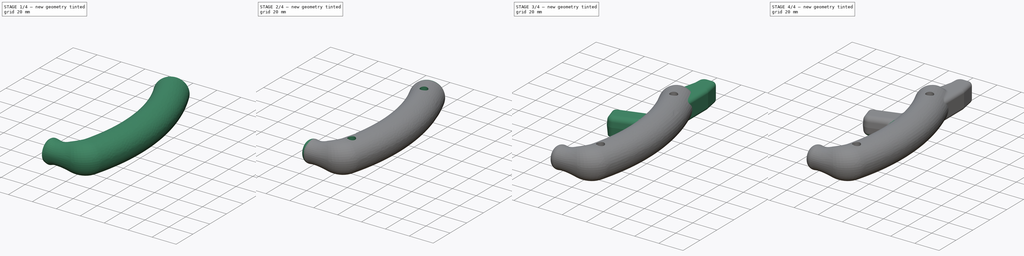
[diagram: build sequence overview — one tinted view per stage of 4, left to right]
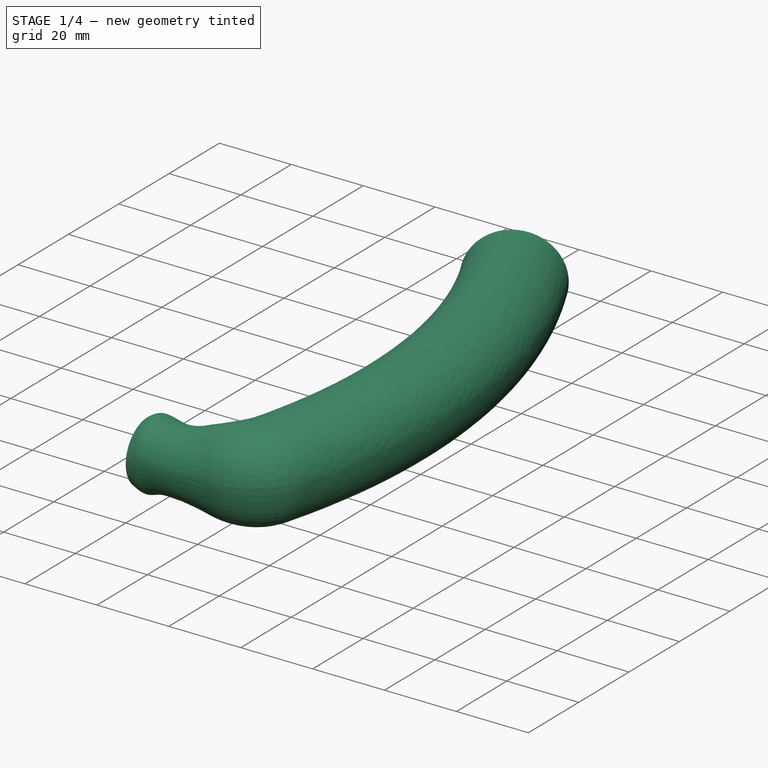
[diagram: stage 1 of 4 — iso view after this stage's code; geometry added in this stage tinted green]
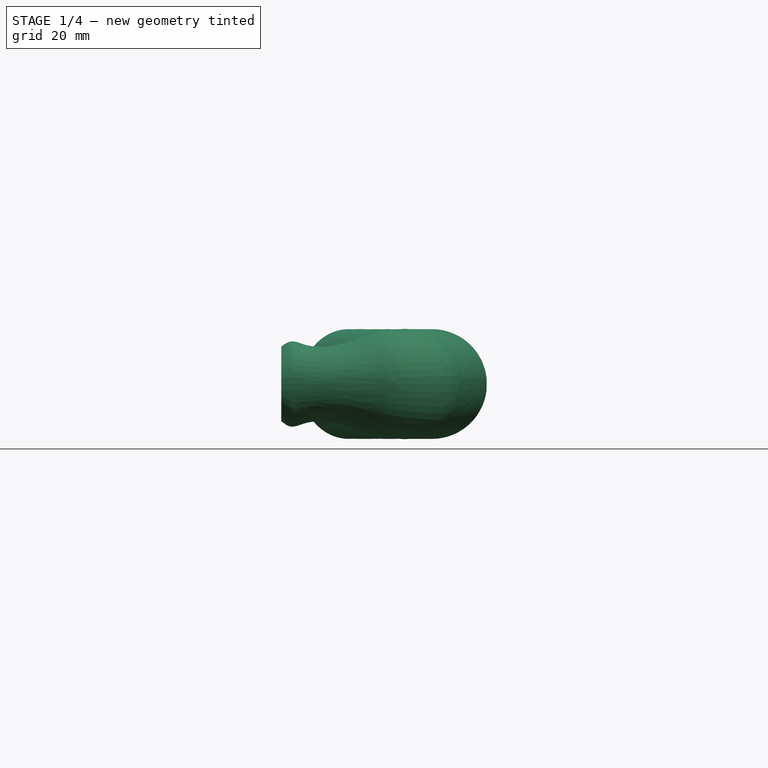
[diagram: stage 1 of 4 — front view after this stage's code; geometry added in this stage tinted green]
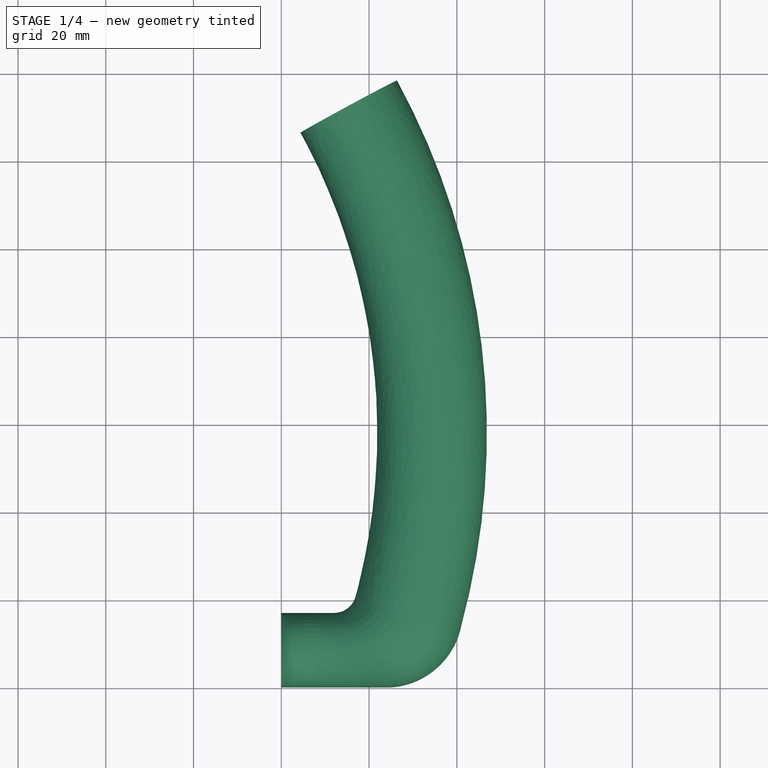
[diagram: stage 1 of 4 — top view after this stage's code; geometry added in this stage tinted green]
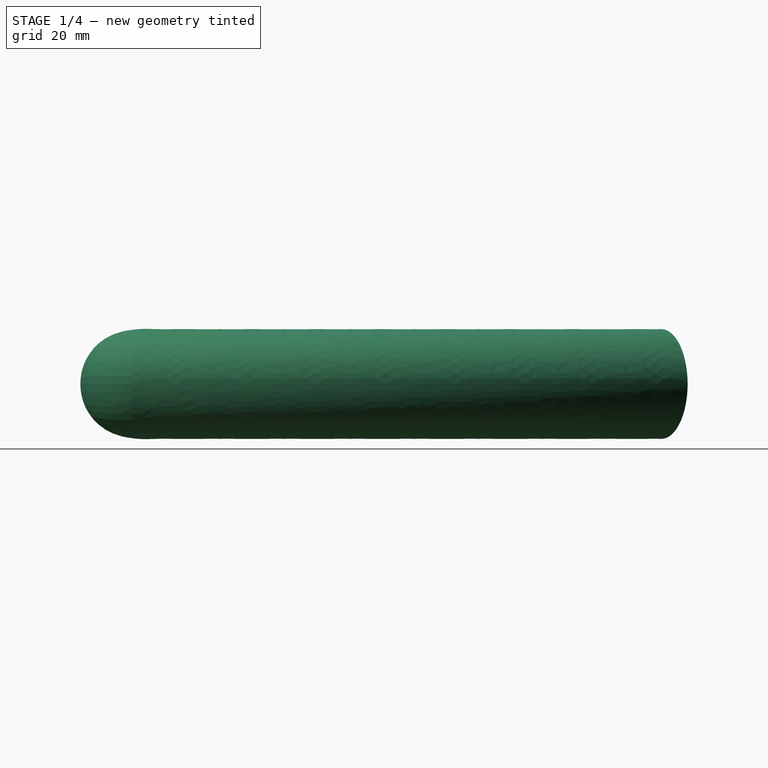
[diagram: stage 1 of 4 — right view after this stage's code; geometry added in this stage tinted green]
FCSTD DOCUMENT  (FreeCAD 1.0R39109 (Git))
Label: handle4
License: All rights reserved
LicenseURL: https://en.wikipedia.org/wiki/All_rights_reserved
objects: Sketcher::SketchObject×16, PartDesign::Plane×9, PartDesign::Fillet×7, PartDesign::AdditivePipe×3, PartDesign::Pad×2, PartDesign::Hole×1, PartDesign::Body×1
note: 81 computed .brp shape members not serialized (recipe doc carries the construction recipe); baked Part::Feature solids carry a one-line shape summary decoded from their .brp

FEATURE [Sketcher::SketchObject] Sketch  label="draft"
  ArcFitTolerance = 1e-06
  FullyConstrained = false
  MakeInternals = false
  sketch-geometry (31):
    g0: LineSegment StartX=0 StartY=16.8405 StartZ=0 EndX=0 EndY=0 EndZ=0
    g1: ArcOfCircle CenterX=24.2442 CenterY=17 CenterZ=0 NormalX=0 NormalY=0 NormalZ=1 AngleXU=0 Radius=17 StartAngle=4.71239 EndAngle=6.01234
    g2: ArcOfCircle CenterX=12.089 CenterY=21.8405 CenterZ=0 NormalX=0 NormalY=0 NormalZ=1 AngleXU=0 Radius=5 StartAngle=4.71239 EndAngle=6.02249
    g3: ArcOfCircle CenterX=0 CenterY=8.42024 CenterZ=0 NormalX=0 NormalY=0 NormalZ=1 AngleXU=0 Radius=8.42024 StartAngle=1.5708 EndAngle=4.71239
    g4: LineSegment StartX=12.089 StartY=16.8405 StartZ=0 EndX=12.089 EndY=0 EndZ=0
    g5: LineSegment StartX=15.135 StartY=17.8754 StartZ=0 EndX=34.532 EndY=3.46632 EndZ=0
    g6: LineSegment StartX=12.089 StartY=16.8405 StartZ=0 EndX=24.2442 EndY=-0.00123973 EndZ=0
    g7: LineSegment StartX=16.92 StartY=20.5517 StartZ=0 EndX=40.6245 EndY=12.4517 EndZ=0
    g8: LineSegment StartX=12.089 StartY=16.8405 StartZ=0 EndX=17.9725 EndY=-3.6e-15 EndZ=0
    g9: LineSegment StartX=8.25203 StartY=67.8671 StartZ=0 EndX=4.47332 EndY=84.6059 EndZ=0
    g10: ArcOfCircle CenterX=6.36268 CenterY=76.2365 CenterZ=0 NormalX=0 NormalY=0 NormalZ=1 AngleXU=0 Radius=8.58001 StartAngle=1.79282 EndAngle=4.93441
    g11: LineSegment StartX=4.3823 StartY=126.388 StartZ=0 EndX=26.3634 EndY=138.297 EndZ=0
    g12: LineSegment StartX=0 StartY=0 StartZ=0 EndX=24.2442 EndY=0 EndZ=0
    g13: LineSegment StartX=12.089 StartY=16.8405 StartZ=0 EndX=0 EndY=16.8405 EndZ=0
    g14: ArcOfCircle CenterX=-122.373 CenterY=57.711 CenterZ=0 NormalX=0 NormalY=0 NormalZ=1 AngleXU=0 Radius=169.165 StartAngle=6.01234 EndAngle=6.77971
    g15: LineSegment StartX=34.0166 StartY=141.401 StartZ=0 EndX=34.0166 EndY=126.047 EndZ=0
    g16: LineSegment StartX=34.0166 StartY=141.401 StartZ=0 EndX=31.941 EndY=152.351 EndZ=0
    g17: LineSegment StartX=22.7796 StartY=155.606 StartZ=0 EndX=28.011 EndY=155.606 EndZ=0
    g18: LineSegment StartX=18.3769 StartY=88.901 StartZ=0 EndX=4.47332 EndY=84.6059 EndZ=0
    g19: LineSegment StartX=21.1969 StartY=70.7893 StartZ=0 EndX=8.25203 EndY=67.8671 EndZ=0
    g20: LineSegment StartX=18.7796 StartY=146.991 StartZ=0 EndX=18.7796 EndY=151.606 EndZ=0
    g21: LineSegment StartX=15.6305 StartY=135.869 StartZ=0 EndX=18.5135 EndY=145.224 EndZ=0
    g22: ArcOfCircle CenterX=12.7796 CenterY=146.991 CenterZ=0 NormalX=0 NormalY=0 NormalZ=1 AngleXU=0 Radius=6 StartAngle=5.98426 EndAngle=6.28319
    g23: ArcOfCircle CenterX=5.11835 CenterY=139.108 CenterZ=0 NormalX=0 NormalY=0 NormalZ=1 AngleXU=0 Radius=11 StartAngle=5.12409 EndAngle=5.98426
    g24: ArcOfCircle CenterX=27.9086 CenterY=86.9159 CenterZ=0 NormalX=0 NormalY=0 NormalZ=1 AngleXU=0 Radius=45.9511 StartAngle=1.9825 EndAngle=2.10829
    g25: ArcOfCircle CenterX=22.7796 CenterY=151.606 CenterZ=0 NormalX=0 NormalY=0 NormalZ=1 AngleXU=0 Radius=4 StartAngle=1.5708 EndAngle=3.14159
    g26: ArcOfCircle CenterX=28.011 CenterY=151.606 CenterZ=0 NormalX=0 NormalY=0 NormalZ=1 AngleXU=0 Radius=4 StartAngle=0.187333 EndAngle=1.5708
    g27: ArcOfCircle CenterX=54.0166 CenterY=126.047 CenterZ=0 NormalX=0 NormalY=0 NormalZ=1 AngleXU=0 Radius=20 StartAngle=3.14159 EndAngle=3.5112
    g28: ArcOfCircle CenterX=-122.373 CenterY=57.711 CenterZ=0 NormalX=0 NormalY=0 NormalZ=1 AngleXU=0 Radius=144.165 StartAngle=6.02249 EndAngle=6.37403
    g29: ArcOfCircle CenterX=-122.373 CenterY=57.711 CenterZ=0 NormalX=0 NormalY=0 NormalZ=1 AngleXU=0 Radius=144.165 StartAngle=0.218074 EndAngle=0.496528
    g30: ArcOfCircle CenterX=-122.373 CenterY=57.711 CenterZ=0 NormalX=0 NormalY=0 NormalZ=1 AngleXU=0 Radius=156.665 StartAngle=6.01234 EndAngle=6.77971
  constraints (1):
    c: Distance(g6,g6) = 20.77
FEATURE [Sketcher::SketchObject] Sketch001  label="main"
  ArcFitTolerance = 1e-06
  AttachmentSupport = -> [XY_Plane]
  FullyConstrained = false
  MakeInternals = false
  MapMode = 5
  sketch-geometry (33):
    g0: LineSegment StartX=0 StartY=0 StartZ=0 EndX=3e-16 EndY=17 EndZ=0
    g1: LineSegment StartX=3e-16 StartY=17 StartZ=0 EndX=11.9553 EndY=17 EndZ=0
    g2: ArcOfCircle CenterX=0.098169 CenterY=8.5 CenterZ=0 NormalX=0 NormalY=0 NormalZ=1 AngleXU=0 Radius=8.50057 StartAngle=1.58235 EndAngle=4.70084
    g3: LineSegment StartX=4.3731 StartY=126.451 StartZ=0 EndX=26.3546 EndY=138.359 EndZ=0
    g4: ArcOfCircle CenterX=-121.158 CenterY=57.9598 CenterZ=0 NormalX=0 NormalY=0 NormalZ=1 AngleXU=0 Radius=168 StartAngle=6.01838 EndAngle=6.78221
    g5: ArcOfCircle CenterX=-121.158 CenterY=57.9598 CenterZ=0 NormalX=0 NormalY=0 NormalZ=1 AngleXU=0 Radius=143 StartAngle=6.01836 EndAngle=6.78265
    g6: ArcOfCircle CenterX=11.9915 CenterY=22.1177 CenterZ=0 NormalX=0 NormalY=0 NormalZ=1 AngleXU=0 Radius=5.11783 StartAngle=4.70532 EndAngle=5.96793
    g7: LineSegment StartX=40.9861 StartY=13.99 StartZ=0 EndX=16.8571 EndY=20.5309 EndZ=0
    g8: ArcOfCircle CenterX=23.8596 CenterY=17.4727 CenterZ=0 NormalX=0 NormalY=0 NormalZ=1 AngleXU=0 Radius=17.4771 StartAngle=4.73473 EndAngle=6.08257
    g9: LineSegment StartX=33.9499 StartY=141.42 StartZ=0 EndX=32 EndY=152 EndZ=0
    g10: LineSegment StartX=19 StartY=152 StartZ=0 EndX=18.6911 EndY=146 EndZ=0
    g11: LineSegment StartX=22 StartY=155.6 StartZ=0 EndX=29 EndY=155.6 EndZ=0
    g12: ArcOfCircle CenterX=28.2135 CenterY=151.895 CenterZ=0 NormalX=0 NormalY=0 NormalZ=1 AngleXU=0 Radius=3.78792 StartAngle=0.027823 EndAngle=1.36165
    g13: ArcOfCircle CenterX=22.5443 CenterY=152.096 CenterZ=0 NormalX=0 NormalY=0 NormalZ=1 AngleXU=0 Radius=3.5456 StartAngle=1.72492 EndAngle=3.16879
    g14: LineSegment StartX=4.41682 StartY=84.6096 StartZ=0 EndX=8.23235 EndY=68.0434 EndZ=0
    g15: ArcOfCircle CenterX=6.32458 CenterY=76.3265 CenterZ=0 NormalX=0 NormalY=0 NormalZ=1 AngleXU=0 Radius=8.5 StartAngle=1.79717 EndAngle=4.93946
    g16: LineSegment StartX=4.42825 StartY=84.5878 StartZ=0 EndX=18.4319 EndY=88.947 EndZ=0
    g17: LineSegment StartX=8.23235 StartY=68.0434 StartZ=0 EndX=21.1452 EndY=72.063 EndZ=0
    g18: LineSegment StartX=32.5262 StartY=20 StartZ=0 EndX=28.9216 EndY=17.2604 EndZ=0
    g19: LineSegment StartX=11.9553 StartY=17 StartZ=0 EndX=24.25 EndY=5.33e-14 EndZ=0
    g20: LineSegment StartX=14.9929 StartY=17.9724 StartZ=0 EndX=35.0562 EndY=4.05322 EndZ=0
    g21: LineSegment StartX=16.2172 StartY=19.2306 StartZ=0 EndX=39.0494 EndY=8.82884 EndZ=0
    g22: LineSegment StartX=13.6942 StartY=17.2914 StartZ=0 EndX=30.2927 EndY=1.22269 EndZ=0
    g23: LineSegment StartX=10.6374 StartY=17 StartZ=0 EndX=17.3604 EndY=0 EndZ=0
    g24: LineSegment StartX=9.44468 StartY=17 StartZ=0 EndX=12.125 EndY=0 EndZ=0
    g25: LineSegment StartX=8.01497 StartY=17 StartZ=0 EndX=8.01497 EndY=0 EndZ=0
    g26: LineSegment StartX=5.97763 StartY=17 StartZ=0 EndX=5.97763 EndY=0 EndZ=0
    g27: LineSegment StartX=20.8595 StartY=74.6968 StartZ=0 EndX=45.6917 EndY=77.5875 EndZ=0
    g28: LineSegment StartX=0 StartY=0 StartZ=0 EndX=8.01497 EndY=0 EndZ=0
    g29: LineSegment StartX=8.01497 StartY=0 StartZ=0 EndX=24.25 EndY=0 EndZ=0
    g30: LineSegment StartX=15.3638 StartY=132.405 StartZ=0 EndX=18.6911 EndY=146 EndZ=0
    g31: LineSegment StartX=33.9499 StartY=141.42 StartZ=0 EndX=35.5663 EndY=109.757 EndZ=0
    g32: LineSegment StartX=15.3638 StartY=132.405 StartZ=0 EndX=35.5663 EndY=109.757 EndZ=0
  constraints (60):
    c: PointOnObject(g8,g-1)
    c: Distance(g0) = 17
    c: PointOnObject(g0,g-2)
    c: DistanceX(g-1,g8) = 24.25
    c: Coincident(g1,g0)
    c: Horizontal(g1)
    c: Coincident(g2,g0)
    c: Distance(g3) = 25
    c: Coincident(g4,g3)
    c: Radius(g4) = 168
    c: Coincident(g5,g4)
    c: Coincident(g5,g3)
    c: Coincident(g6,g1)
    c: Coincident(g6,g5)
    c: Coincident(g7,g4)
    c: Coincident(g7,g5)
    c: DistanceY(g-1,g4) = 13.99
    c: Coincident(g8,g4)
    c: Horizontal(g11)
    c: Coincident(g12,g11)
    c: Coincident(g12,g9)
    c: Coincident(g13,g11)
    c: Coincident(g13,g10)
    c: Distance(g14) = 17
    c: Symmetric(g14,g14,g15)
    c: Coincident(g15,g14)
    c: Coincident(g17,g14)
    c: PointOnObject(g17,g5)
    c: Parallel(g17,g16)
    c: Symmetric(g7,g7,g18)
    c: Coincident(g19,g1)
    c: PointOnObject(g20,g6)
    c: PointOnObject(g20,g8)
    c: PointOnObject(g21,g6)
    c: PointOnObject(g21,g8)
    c: PointOnObject(g22,g6)
    c: PointOnObject(g22,g8)
    c: PointOnObject(g23,g1)
    c: PointOnObject(g24,g1)
    c: Symmetric(g-1,g8,g24)
    c: PointOnObject(g25,g1)
    c: Vertical(g25)
    c: Symmetric(g1,g1,g26)
    c: Vertical(g26)
    c: PointOnObject(g27,g5)
    c: PointOnObject(g27,g4)
    c: Distance(g19,g19) = 20.98
    c: Distance(g21,g21) = 25.09
    c: Distance(g24,g24) = 17.21
    c: Coincident(g28,g0)
    c: Coincident(g28,g25)
    c: Horizontal(g28)
    c: Coincident(g29,g25)
    c: Coincident(g29,g8)
    c: Horizontal(g29)
    c: Symmetric(g3,g3,g30)
    c: Coincident(g30,g10)
    c: Coincident(g31,g9)
    c: Coincident(g32,g30)
    c: Coincident(g32,g31)
FEATURE [PartDesign::Plane] DatumPlane001
  AttachmentOffset = pos=(0,0,0) rot=(0,1,0;1.5708rad)
  AttachmentSupport = -> [Sketch001]
  Length = 216.203
  MapMode = 7
  Placement = pos=(40.9861,13.99,0) rot=(0.093727,0.703994,0.703994;2.95468rad)
  ResizeMode = 0
  Width = 69.8184
FEATURE [PartDesign::Plane] DatumPlane002
  AttachmentOffset = pos=(0,0,0) rot=(0,1,0;1.5708rad)
  AttachmentSupport = -> [Sketch001]
  Length = 203.072
  MapMode = 7
  Placement = pos=(0,0,0) rot=(0.57735,0.57735,0.57735;2.0944rad)
  ResizeMode = 0
  Width = 69.1778
FEATURE [PartDesign::Plane] DatumPlane
  AttachmentOffset = pos=(0,0,0) rot=(0,1,0;1.5708rad)
  AttachmentSupport = -> [Sketch001]
  Length = 243.774
  MapMode = 7
  Placement = pos=(4.3731,126.451,0) rot=(0.941347,0.238607,0.238607;1.6312rad)
  ResizeMode = 0
  Width = 71.1031
FEATURE [Sketcher::SketchObject] Sketch002
  ArcFitTolerance = 1e-06
  AttachmentSupport = -> [DatumPlane]
  FullyConstrained = true
  MakeInternals = false
  MapMode = 5
  Placement = pos=(4.3731,126.451,0) rot=(0.941347,0.238607,0.238607;1.6312rad)
  sketch-geometry (1):
    g0: Circle CenterX=12.5 CenterY=0 CenterZ=0 NormalX=0 NormalY=0 NormalZ=1 AngleXU=0 Radius=12.5
  constraints (3):
    c: Diameter(g0) = 25
    c: PointOnObject(g0,g-1)
    c: DistanceX(g-1,g0) = 12.5
FEATURE [Sketcher::SketchObject] Sketch003
  ArcFitTolerance = 1e-06
  AttachmentSupport = -> [DatumPlane001]
  FullyConstrained = true
  MakeInternals = false
  MapMode = 5
  Placement = pos=(40.9861,13.99,0) rot=(0.093727,0.703994,0.703994;2.95468rad)
  sketch-geometry (1):
    g0: Circle CenterX=12.5 CenterY=0 CenterZ=0 NormalX=0 NormalY=0 NormalZ=1 AngleXU=0 Radius=12.5
  constraints (3):
    c: Diameter(g0) = 25
    c: PointOnObject(g0,g-1)
    c: DistanceX(g-1,g0) = 12.5
FEATURE [Sketcher::SketchObject] Sketch004
  ArcFitTolerance = 1e-06
  AttachmentSupport = -> [DatumPlane002]
  FullyConstrained = true
  MakeInternals = false
  MapMode = 5
  Placement = pos=(0,0,0) rot=(0.57735,0.57735,0.57735;2.0944rad)
  sketch-geometry (1):
    g0: Circle CenterX=8.5 CenterY=0 CenterZ=0 NormalX=0 NormalY=0 NormalZ=1 AngleXU=0 Radius=8.5
  constraints (3):
    c: Diameter(g0) = 17
    c: PointOnObject(g0,g-1)
    c: DistanceX(g-1,g0) = 8.5
FEATURE [PartDesign::AdditivePipe] AdditivePipe
  AuxilleryCurvelinear = true
  AuxillerySpineTangent = false
  Binormal = (0,0,0)
  Mode = 0
  Placement = pos=(4.3731,126.451,0) rot=(0.941347,0.238607,0.238607;1.6312rad)
  Profile = -> Sketch002
  Refine = true
  Spine = -> Sketch001 [Edge8]
  SpineTangent = false
  Suppressed = false
  Transformation = 0
  Transition = 0
FEATURE [PartDesign::Plane] DatumPlane004
  AttachmentOffset = pos=(0,0,0) rot=(0,1,0;1.5708rad)
  AttachmentSupport = -> [Sketch001]
  Length = 252.541
  MapMode = 7
  Placement = pos=(14.9929,17.9724,0) rot=(-0.91446,0.28615,0.28615;4.62309rad)
  ResizeMode = 0
  Width = 71.4963
FEATURE [Sketcher::SketchObject] Sketch006
  ArcFitTolerance = 1e-06
  AttachmentSupport = -> [DatumPlane004]
  FullyConstrained = true
  MakeInternals = false
  MapMode = 5
  Placement = pos=(14.9929,17.9724,0) rot=(0.91446,-0.28615,-0.28615;1.6601rad)
  sketch-geometry (1):
    g0: Circle CenterX=12.205 CenterY=0 CenterZ=0 NormalX=0 NormalY=0 NormalZ=1 AngleXU=0 Radius=12.205
  constraints (3):
    c: Diameter(g0) = 24.41
    c: PointOnObject(g0,g-1)
    c: DistanceX(g-1,g0) = 12.205
FEATURE [PartDesign::Plane] DatumPlane005
  AttachmentOffset = pos=(0,0,0) rot=(0,1,0;1.5708rad)
  AttachmentSupport = -> [Sketch001]
  Length = 260.9
  MapMode = 7
  Placement = pos=(11.9553,17,0) rot=(-0.810565,0.414116,0.414116;4.50389rad)
  ResizeMode = 0
  Width = 71.8648
FEATURE [Sketcher::SketchObject] Sketch007
  ArcFitTolerance = 1e-06
  AttachmentSupport = -> [DatumPlane005]
  FullyConstrained = true
  MakeInternals = false
  MapMode = 5
  Placement = pos=(11.9553,17,0) rot=(0.810565,-0.414116,-0.414116;1.77929rad)
  sketch-geometry (1):
    g0: Circle CenterX=10.49 CenterY=0 CenterZ=0 NormalX=0 NormalY=0 NormalZ=1 AngleXU=0 Radius=10.49
  constraints (3):
    c: PointOnObject(g0,g-1)
    c: PointOnObject(g-1,g0)
    c: DistanceX(g-1,g0) = 10.49
FEATURE [PartDesign::Plane] DatumPlane006
  AttachmentOffset = pos=(0,0,0) rot=(0,1,0;1.5708rad)
  AttachmentSupport = -> [Sketch001]
  Length = 236.824
  MapMode = 7
  Placement = pos=(16.2172,19.2306,0) rot=(-0.955975,0.207499,0.207499;4.66738rad)
  ResizeMode = 0
  Width = 70.7864
FEATURE [Sketcher::SketchObject] Sketch008
  ArcFitTolerance = 1e-06
  AttachmentSupport = -> [DatumPlane006]
  FullyConstrained = true
  MakeInternals = false
  MapMode = 5
  Placement = pos=(16.2172,19.2306,0) rot=(0.955975,-0.207499,-0.207499;1.6158rad)
  sketch-geometry (1):
    g0: Circle CenterX=12.545 CenterY=0 CenterZ=0 NormalX=0 NormalY=0 NormalZ=1 AngleXU=0 Radius=12.545
  constraints (3):
    c: Diameter(g0) = 25.09
    c: PointOnObject(g0,g-1)
    c: PointOnObject(g-1,g0)
FEATURE [PartDesign::Plane] DatumPlane007
  AttachmentOffset = pos=(0,0,0) rot=(0,1,0;1.5708rad)
  AttachmentSupport = -> [Sketch001]
  Length = 260.9
  MapMode = 7
  Placement = pos=(11.9553,17,0) rot=(-0.810565,0.414116,0.414116;4.50389rad)
  ResizeMode = 0
  Width = 71.8648
FEATURE [Sketcher::SketchObject] Sketch009
  ArcFitTolerance = 1e-06
  AttachmentSupport = -> [DatumPlane007]
  FullyConstrained = true
  MakeInternals = false
  MapMode = 5
  Placement = pos=(11.9553,17,0) rot=(0.810565,-0.414116,-0.414116;1.77929rad)
  sketch-geometry (1):
    g0: Circle CenterX=10.49 CenterY=0 CenterZ=0 NormalX=0 NormalY=0 NormalZ=1 AngleXU=0 Radius=10.49
  constraints (3):
    c: Diameter(g0) = 20.98
    c: PointOnObject(g0,g-1)
    c: DistanceX(g-1,g0) = 10.49
FEATURE [PartDesign::Plane] DatumPlane008
  AttachmentOffset = pos=(0,0,0) rot=(0,1,0;1.5708rad)
  AttachmentSupport = -> [Sketch001]
  Length = 225.853
  MapMode = 7
  Placement = pos=(9.44468,17,0) rot=(-0.63745,0.54482,0.54482;4.2766rad)
  ResizeMode = 0
  Width = 70.2769
FEATURE [Sketcher::SketchObject] Sketch010
  ArcFitTolerance = 1e-06
  AttachmentSupport = -> [DatumPlane008]
  FullyConstrained = true
  MakeInternals = false
  MapMode = 5
  Placement = pos=(9.44468,17,0) rot=(0.63745,-0.54482,-0.54482;2.00659rad)
  sketch-geometry (1):
    g0: Circle CenterX=8.605 CenterY=0 CenterZ=0 NormalX=0 NormalY=0 NormalZ=1 AngleXU=0 Radius=8.605
  constraints (3):
    c: Diameter(g0) = 17.21
    c: PointOnObject(g0,g-1)
    c: PointOnObject(g-1,g0)
FEATURE [PartDesign::Plane] DatumPlane009
  AttachmentOffset = pos=(0,0,0) rot=(0,1,0;1.5708rad)
  AttachmentSupport = -> [Sketch001]
  Length = 203.072
  MapMode = 7
  Placement = pos=(8.01497,17,0) rot=(-0.57735,0.57735,0.57735;4.18879rad)
  ResizeMode = 0
  Width = 69.1778
FEATURE [Sketcher::SketchObject] Sketch011
  ArcFitTolerance = 1e-06
  AttachmentSupport = -> [DatumPlane009]
  FullyConstrained = true
  MakeInternals = false
  MapMode = 5
  Placement = pos=(8.01497,17,0) rot=(0.57735,-0.57735,-0.57735;2.0944rad)
  sketch-geometry (1):
    g0: Circle CenterX=8.5 CenterY=0 CenterZ=0 NormalX=0 NormalY=0 NormalZ=1 AngleXU=0 Radius=8.5
  constraints (3):
    c: Diameter(g0) = 17
    c: PointOnObject(g0,g-1)
    c: PointOnObject(g-1,g0)
FEATURE [PartDesign::AdditivePipe] AdditivePipe001
  AuxilleryCurvelinear = true
  AuxillerySpineTangent = false
  BaseFeature = -> AdditivePipe
  Binormal = (0,0,0)
  Mode = 0
  Placement = pos=(4.3731,126.451,0) rot=(0.941347,0.238607,0.238607;1.6312rad)
  Profile = -> Sketch003
  Refine = true
  Sections = -> [Sketch008,Sketch006,Sketch007]
  Spine = -> Sketch001 [Edge7]
  SpineTangent = false
  Suppressed = false
  Transformation = 1
  Transition = 0
FEATURE [PartDesign::AdditivePipe] AdditivePipe002
  AuxilleryCurvelinear = true
  AuxillerySpineTangent = false
  BaseFeature = -> AdditivePipe001
  Binormal = (0,0,0)
  Mode = 0
  Placement = pos=(4.3731,126.451,0) rot=(0.941347,0.238607,0.238607;1.6312rad)
  Profile = -> AdditivePipe001 [Face5]
  Refine = true
  Sections = -> [Sketch010,Sketch011,Sketch004]
  Spine = -> Sketch001 [Edge6]
  SpineTangent = false
  Suppressed = false
  Transformation = 1
  Transition = 0
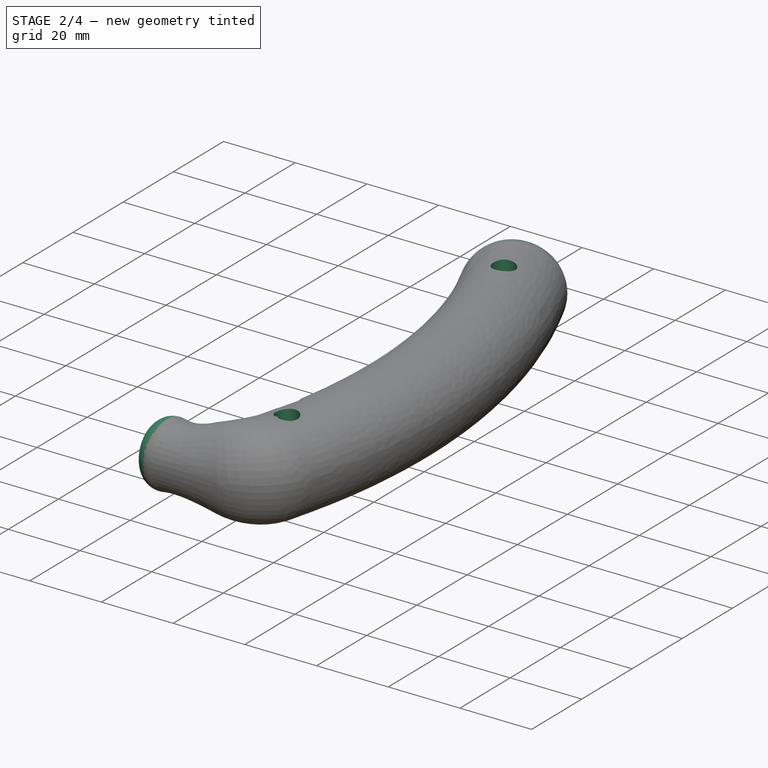
[diagram: stage 2 of 4 — iso view after this stage's code; geometry added in this stage tinted green]
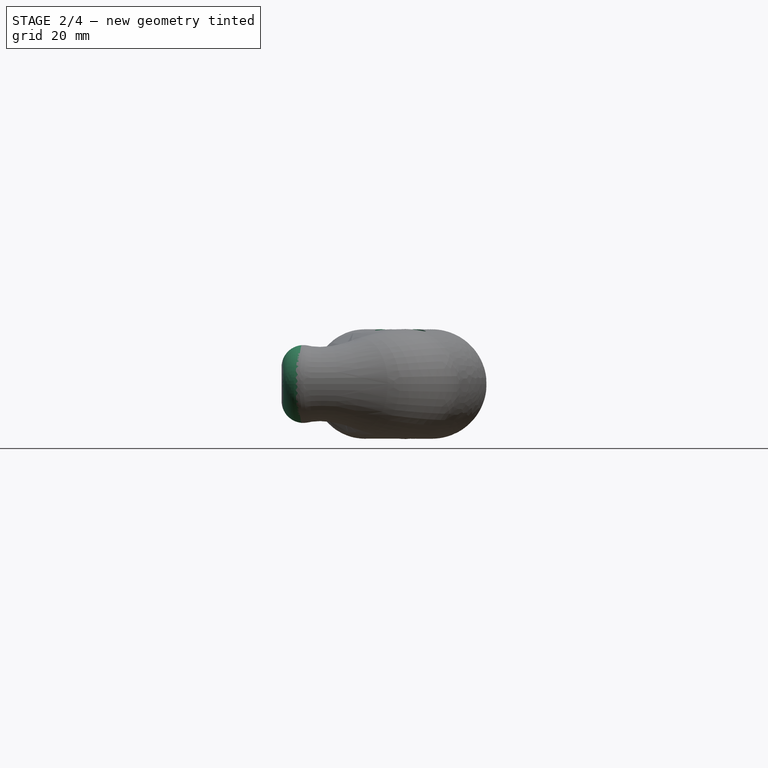
[diagram: stage 2 of 4 — front view after this stage's code; geometry added in this stage tinted green]
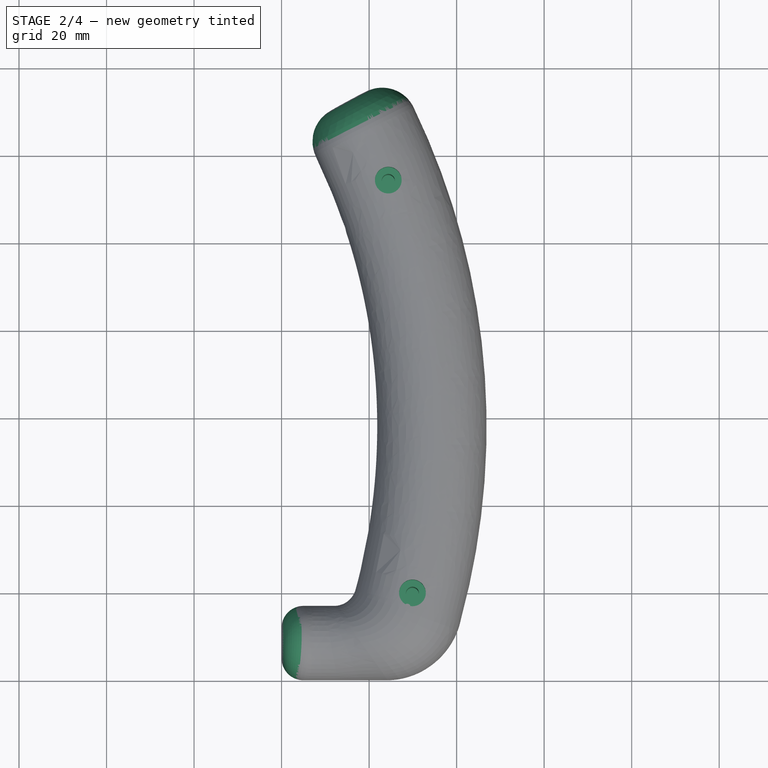
[diagram: stage 2 of 4 — top view after this stage's code; geometry added in this stage tinted green]
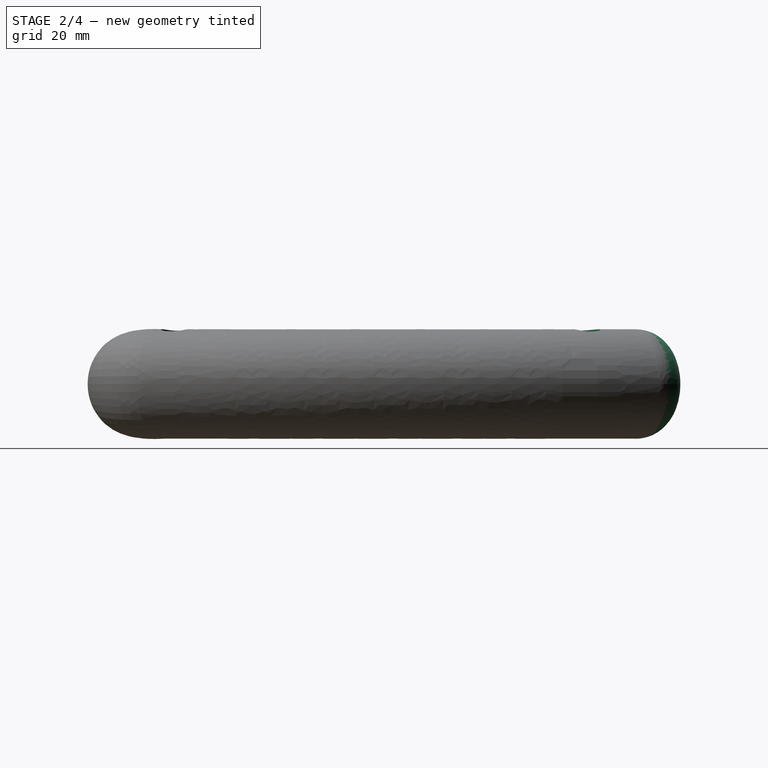
[diagram: stage 2 of 4 — right view after this stage's code; geometry added in this stage tinted green]
FEATURE [Sketcher::SketchObject] Sketch012
  ArcFitTolerance = 1e-06
  AttachmentSupport = -> [XY_Plane]
  FullyConstrained = false
  MakeInternals = false
  MapMode = 5
  sketch-geometry (2):
    g0: ArcOfCircle CenterX=0 CenterY=8.5 CenterZ=0 NormalX=0 NormalY=0 NormalZ=1 AngleXU=0 Radius=8.5 StartAngle=1.5708 EndAngle=4.71239
    g1: LineSegment StartX=-1.6e-15 StartY=17 StartZ=0 EndX=-1.6e-15 EndY=0 EndZ=0
  constraints (4):
    c: Coincident(g0,g-1)
    c: Coincident(g1,g0)
    c: Coincident(g1,g0)
    c: Vertical(g1)
FEATURE [Sketcher::SketchObject] Sketch013
  ArcFitTolerance = 1e-06
  AttachmentOffset = pos=(0,0,12.5) rot=(0,0,1;0rad)
  AttachmentSupport = -> [XY_Plane]
  FullyConstrained = false
  MakeInternals = false
  MapMode = 5
  Placement = pos=(0,0,12.5) rot=(0,0,1;0rad)
  sketch-geometry (2):
    g0: Circle CenterX=29.902 CenterY=19.7627 CenterZ=0 NormalX=0 NormalY=0 NormalZ=1 AngleXU=0 Radius=0.75
    g1: Circle CenterX=24.3839 CenterY=114.1 CenterZ=0 NormalX=0 NormalY=0 NormalZ=1 AngleXU=0 Radius=0.75
  constraints (2):
    c: Diameter(g0) = 1.5
    c: Diameter(g1) = 1.5
FEATURE [PartDesign::Hole] Hole
  BaseFeature = -> AdditivePipe002
  CustomThreadClearance = 0
  Depth = 20
  DepthType = 0
  Diameter = 3
  DrillForDepth = false
  DrillPoint = 0
  DrillPointAngle = 118
  HoleCutCountersinkAngle = 90
  HoleCutCustomValues = false
  HoleCutDepth = 5
  HoleCutDiameter = 6.1
  HoleCutType = 1
  ModelThread = false
  Placement = pos=(4.3731,126.451,0) rot=(0.941347,0.238607,0.238607;1.6312rad)
  Profile = -> Sketch013
  Refine = true
  Suppressed = false
  Tapered = true
  TaperedAngle = 90
  ThreadClass = 0
  ThreadDepth = 20
  ThreadDepthType = 0
  ThreadDirection = 0
  ThreadFit = 0
  ThreadSize = 0
  ThreadType = 0
  Threaded = false
  UseCustomThreadClearance = false
FEATURE [Sketcher::SketchObject] Sketch014
  ArcFitTolerance = 1e-06
  AttachmentSupport = -> [XY_Plane]
  FullyConstrained = true
  MakeInternals = false
  MapMode = 5
FEATURE [Sketcher::SketchObject] Sketch015
  ArcFitTolerance = 1e-06
  AttachmentSupport = -> [XY_Plane]
  FullyConstrained = false
  MakeInternals = false
  MapMode = 5
  sketch-geometry (8):
    g0: LineSegment StartX=23.8504 StartY=155.6 StartZ=0 EndX=28.2953 EndY=155.6 EndZ=0
    g1: LineSegment StartX=18.9469 StartY=150.935 StartZ=0 EndX=18.7 EndY=145.978 EndZ=0
    g2: LineSegment StartX=18.7 StartY=145.978 StartZ=0 EndX=15.4 EndY=132.3 EndZ=0
    g3: LineSegment StartX=15.4 StartY=132.3 StartZ=0 EndX=34 EndY=110 EndZ=0
    g4: LineSegment StartX=34 StartY=141 StartZ=0 EndX=34 EndY=110 EndZ=0
    g5: LineSegment StartX=34 StartY=141 StartZ=0 EndX=31.8911 EndY=152.599 EndZ=0
    g6: ArcOfCircle CenterX=28.2953 CenterY=151.945 CenterZ=0 NormalX=0 NormalY=0 NormalZ=1 AngleXU=0 Radius=3.65468 StartAngle=0.179853 EndAngle=1.5708
    g7: ArcOfCircle CenterX=23.8504 CenterY=150.69 CenterZ=0 NormalX=0 NormalY=0 NormalZ=1 AngleXU=0 Radius=4.90952 StartAngle=1.5708 EndAngle=3.09181
  constraints (10):
    c: Horizontal(g0)
    c: Coincident(g2,g1)
    c: Coincident(g3,g2)
    c: Coincident(g4,g3)
    c: Vertical(g4)
    c: Coincident(g5,g4)
    c: Tangent(g0,g6) = 1.5708
    c: Tangent(g5,g6) = -1.5708
    c: Tangent(g0,g7) = 1.5708
    c: Tangent(g1,g7) = -1.5708
FEATURE [PartDesign::Fillet] Fillet
  Base = -> Hole [Face12]
  BaseFeature = -> Hole
  Placement = pos=(4.3731,126.451,0) rot=(0.941347,0.238607,0.238607;1.6312rad)
  Radius = 5
  Refine = true
  SupportTransform = false
  Suppressed = false
  UseAllEdges = false
FEATURE [PartDesign::Fillet] Fillet001
  Base = -> Fillet [Face11]
  BaseFeature = -> Fillet
  Placement = pos=(4.3731,126.451,0) rot=(0.941347,0.238607,0.238607;1.6312rad)
  Radius = 8
  Refine = true
  SupportTransform = false
  Suppressed = false
  UseAllEdges = false
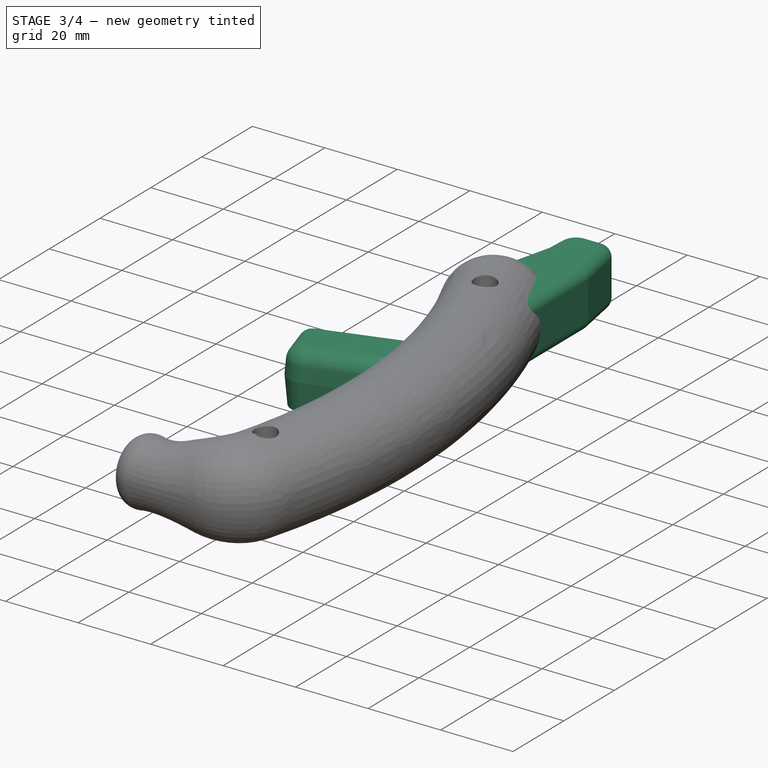
[diagram: stage 3 of 4 — iso view after this stage's code; geometry added in this stage tinted green]
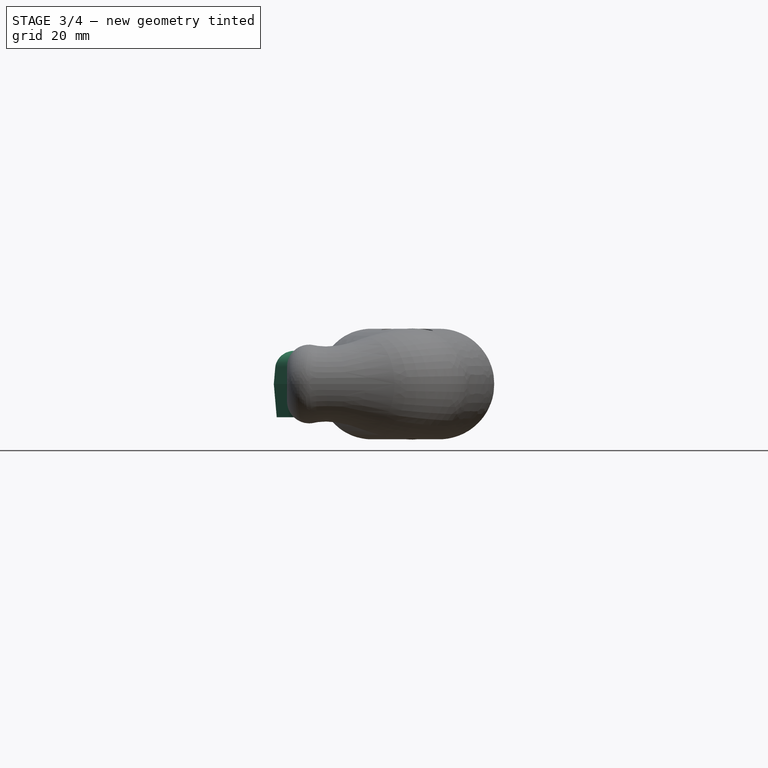
[diagram: stage 3 of 4 — front view after this stage's code; geometry added in this stage tinted green]
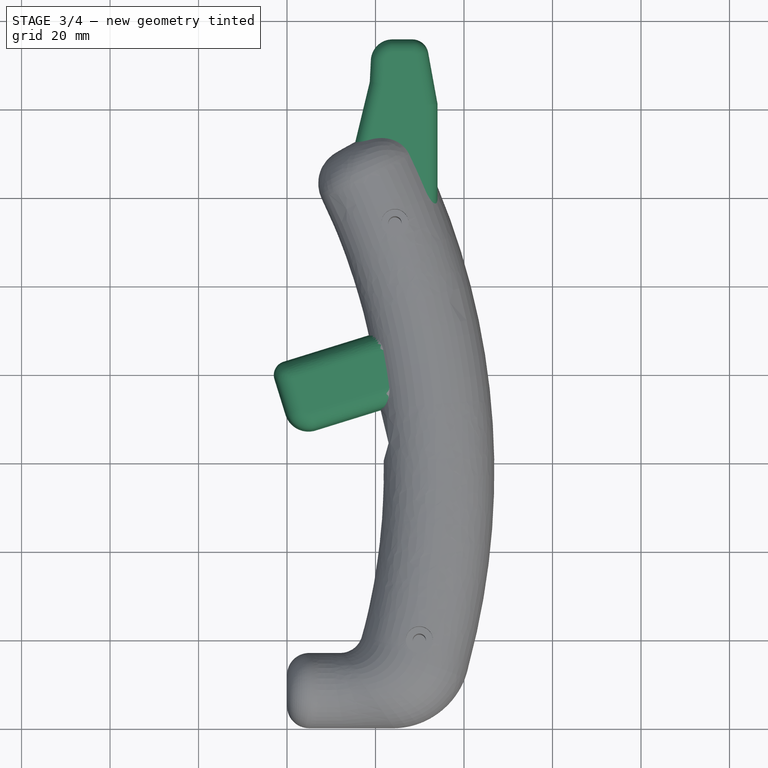
[diagram: stage 3 of 4 — top view after this stage's code; geometry added in this stage tinted green]
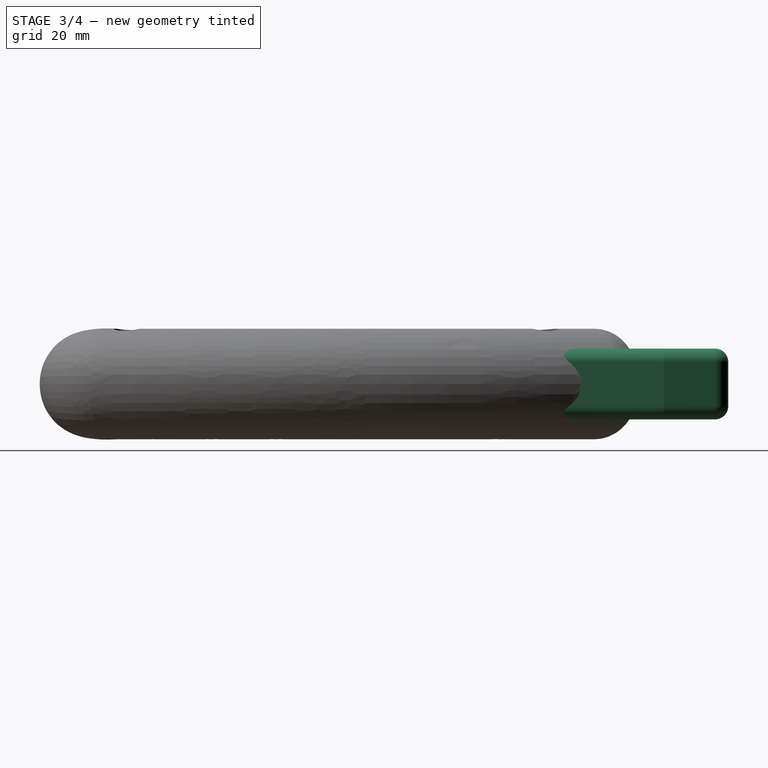
[diagram: stage 3 of 4 — right view after this stage's code; geometry added in this stage tinted green]
FEATURE [PartDesign::Pad] Pad
  BaseFeature = -> Fillet001
  Direction = (0,0,1)
  Length = 16
  Length2 = 10
  Midplane = true
  Placement = pos=(4.3731,126.451,0) rot=(0.941347,0.238607,0.238607;1.6312rad)
  Profile = -> Sketch015
  ReferenceAxis = -> Sketch015 [N_Axis]
  Refine = true
  Suppressed = false
  Type = 0
FEATURE [PartDesign::Fillet] Fillet002
  Base = -> Pad [Edge29,Edge28,Edge47,Edge33,Edge32,Edge31,Edge38,Edge37,Edge36,Edge46,Edge45,Edge51,Edge50,Edge49]
  BaseFeature = -> Pad
  Placement = pos=(4.3731,126.451,0) rot=(0.941347,0.238607,0.238607;1.6312rad)
  Radius = 3
  Refine = true
  SupportTransform = false
  Suppressed = false
  UseAllEdges = false
FEATURE [Sketcher::SketchObject] Sketch016
  ArcFitTolerance = 1e-06
  AttachmentSupport = -> [XY_Plane]
  FullyConstrained = false
  MakeInternals = false
  MapMode = 5
  sketch-geometry (8):
    g0: LineSegment StartX=-2.84957 StartY=78.8754 StartZ=0 EndX=-0.362695 EndY=70.8634 EndZ=0
    g1: LineSegment StartX=-0.7656 StartY=82.8354 StartZ=0 EndX=30.0032 EndY=92.3858 EndZ=0
    g2: LineSegment StartX=6.45383 StartY=67.2761 StartZ=0 EndX=34.4153 EndY=75.9552 EndZ=0
    g3: LineSegment StartX=30.0032 StartY=92.3858 StartZ=0 EndX=34.4153 EndY=75.9552 EndZ=0
    g4: ArcOfCircle CenterX=0.172407 CenterY=79.8134 CenterZ=0 NormalX=0 NormalY=0 NormalZ=1 AngleXU=0 Radius=3.16421 StartAngle=1.87176 EndAngle=3.44256
    g5: GeomPoint [constr] X=-3.78758 Y=81.8973 Z=0
    g6: ArcOfCircle CenterX=4.83919 CenterY=72.478 CenterZ=0 NormalX=0 NormalY=0 NormalZ=1 AngleXU=0 Radius=5.44671 StartAngle=3.44256 EndAngle=5.01335
    g7: GeomPoint [constr] X=1.25194 Y=65.6615 Z=0
  constraints (13):
    c: Distance(g7,g5) = 17
    c: Perpendicular(g0,g1)
    c: Parallel(g1,g2)
    c: Coincident(g3,g1)
    c: Coincident(g3,g2)
    c: PointOnObject(g5,g0)
    c: PointOnObject(g5,g1)
    c: Tangent(g0,g4) = -1.5708
    c: Tangent(g1,g4) = 1.5708
    c: PointOnObject(g7,g0)
    c: PointOnObject(g7,g2)
    c: Tangent(g0,g6) = -1.5708
    c: Tangent(g2,g6) = -1.5708
FEATURE [PartDesign::Pad] Pad001
  BaseFeature = -> Fillet002
  Direction = (0,0,1)
  Length = 15
  Length2 = 10
  Midplane = true
  Placement = pos=(4.3731,126.451,0) rot=(0.941347,0.238607,0.238607;1.6312rad)
  Profile = -> Sketch016 [Edge5,Edge4,Edge3,Edge2,Edge1,Edge6]
  ReferenceAxis = -> Sketch016 [N_Axis]
  Refine = true
  Suppressed = false
  TaperAngle = -5
  Type = 0
FEATURE [PartDesign::Fillet] Fillet003
  Base = -> Pad001 [Edge72,Edge73,Edge74,Edge75,Edge76]
  BaseFeature = -> Pad001
  Placement = pos=(4.3731,126.451,0) rot=(0.941347,0.238607,0.238607;1.6312rad)
  Radius = 4
  Refine = true
  SupportTransform = false
  Suppressed = false
  UseAllEdges = false
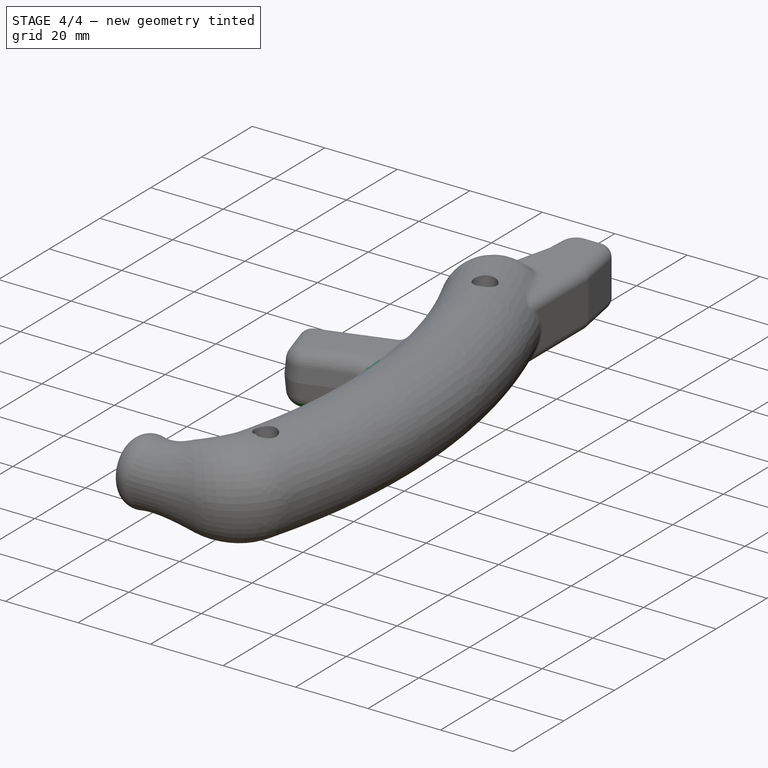
[diagram: stage 4 of 4 — iso view after this stage's code; geometry added in this stage tinted green]
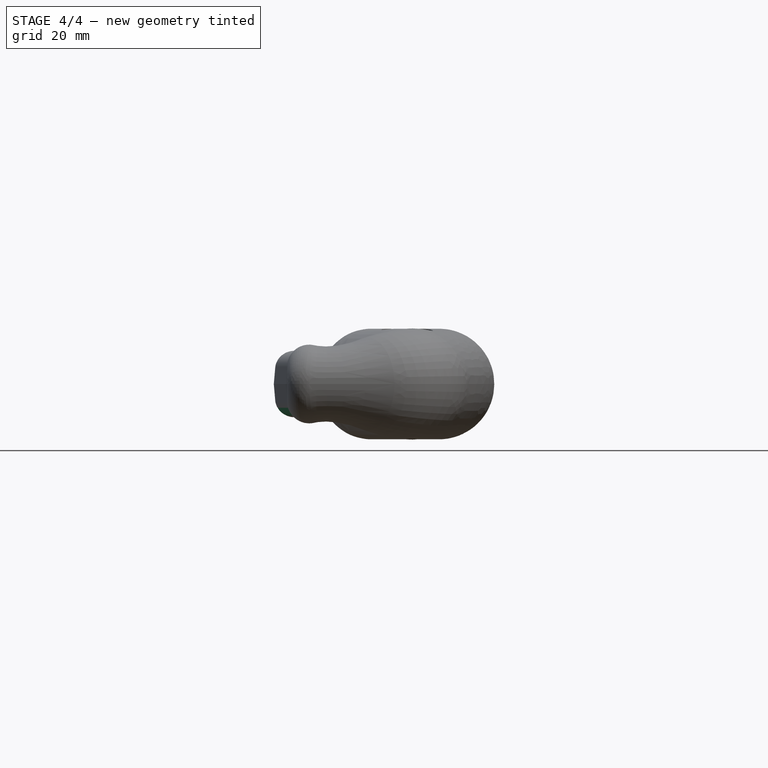
[diagram: stage 4 of 4 — front view after this stage's code; geometry added in this stage tinted green]
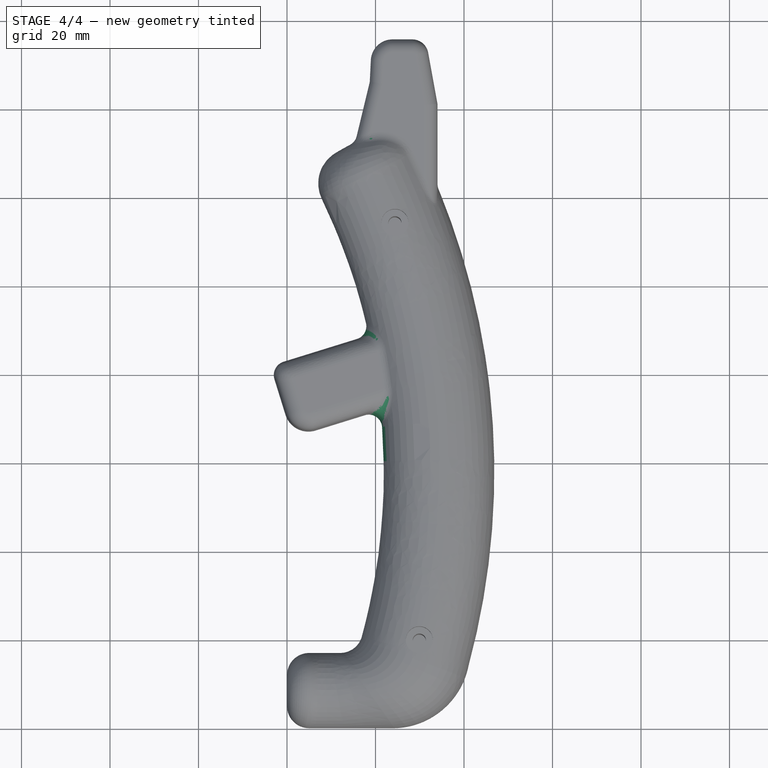
[diagram: stage 4 of 4 — top view after this stage's code; geometry added in this stage tinted green]
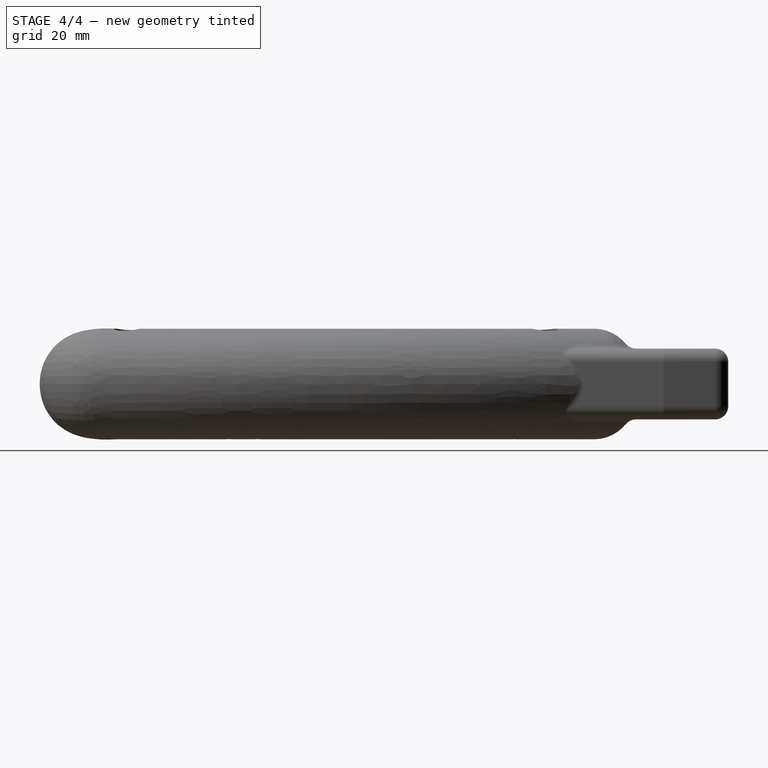
[diagram: stage 4 of 4 — right view after this stage's code; geometry added in this stage tinted green]
FEATURE [PartDesign::Fillet] Fillet004
  Base = -> Fillet003 [Edge33,Edge37,Edge38,Edge39,Edge40]
  BaseFeature = -> Fillet003
  Placement = pos=(4.3731,126.451,0) rot=(0.941347,0.238607,0.238607;1.6312rad)
  Radius = 4
  Refine = true
  SupportTransform = false
  Suppressed = false
  UseAllEdges = false
FEATURE [PartDesign::Fillet] Fillet005
  Base = -> Fillet004 [Edge5,Edge3,Edge1,Edge2,Edge4,Edge6,Edge8,Edge10,Edge9,Edge7]
  BaseFeature = -> Fillet004
  Placement = pos=(4.3731,126.451,0) rot=(0.941347,0.238607,0.238607;1.6312rad)
  Radius = 3
  Refine = true
  SupportTransform = false
  Suppressed = false
  UseAllEdges = false
FEATURE [PartDesign::Fillet] Fillet006
  Base = -> Fillet005 [Edge121,Edge63,Edge64,Edge61,Edge60,Edge59,Edge52,Edge12,Edge11,Edge24,Edge16,Edge15,Edge14]
  BaseFeature = -> Fillet005
  Placement = pos=(4.3731,126.451,0) rot=(0.941347,0.238607,0.238607;1.6312rad)
  Radius = 3
  Refine = true
  SupportTransform = false
  Suppressed = false
  UseAllEdges = false
FEATURE [PartDesign::Body] Body
  AllowCompound = false
  Group = -> [Sketch,Sketch001,DatumPlane,DatumPlane001,DatumPlane002,Sketch002,Sketch003,Sketch004,AdditivePipe,DatumPlane004,Sketch006,DatumPlane005,Sketch007,DatumPlane006,Sketch008,DatumPlane007,Sketch009,DatumPlane008,Sketch010,DatumPlane009,Sketch011,AdditivePipe001,AdditivePipe002,Sketch012,Sketch013,Hole,Sketch014,Sketch015,Fillet,Fillet001,Pad,Fillet002,Sketch016,Pad001,Fillet003,Fillet004,Fillet005,+1 more]
  Origin = -> Origin
  Tip = -> Fillet006
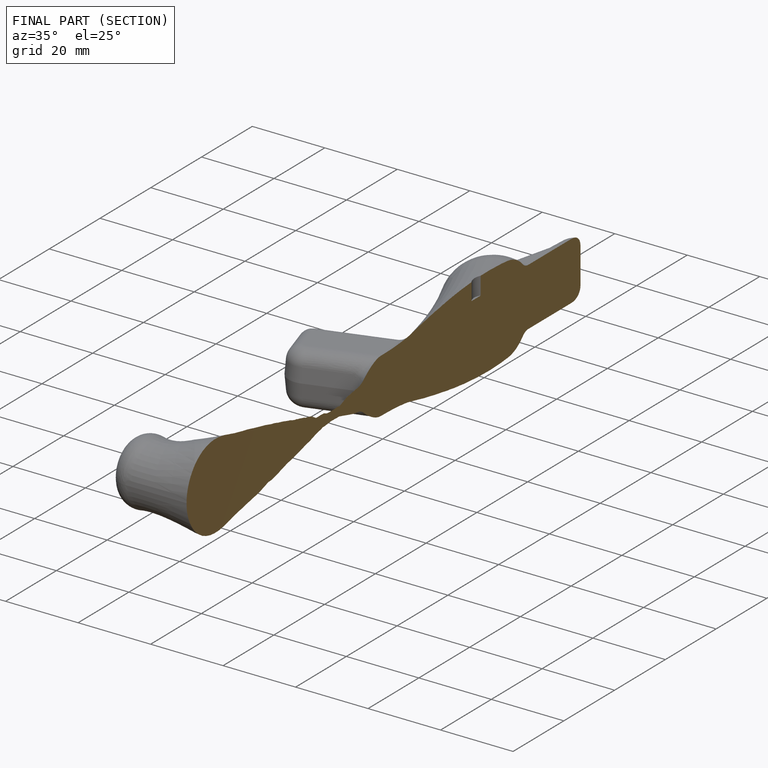
[diagram: finished part — half-section view (interior)]
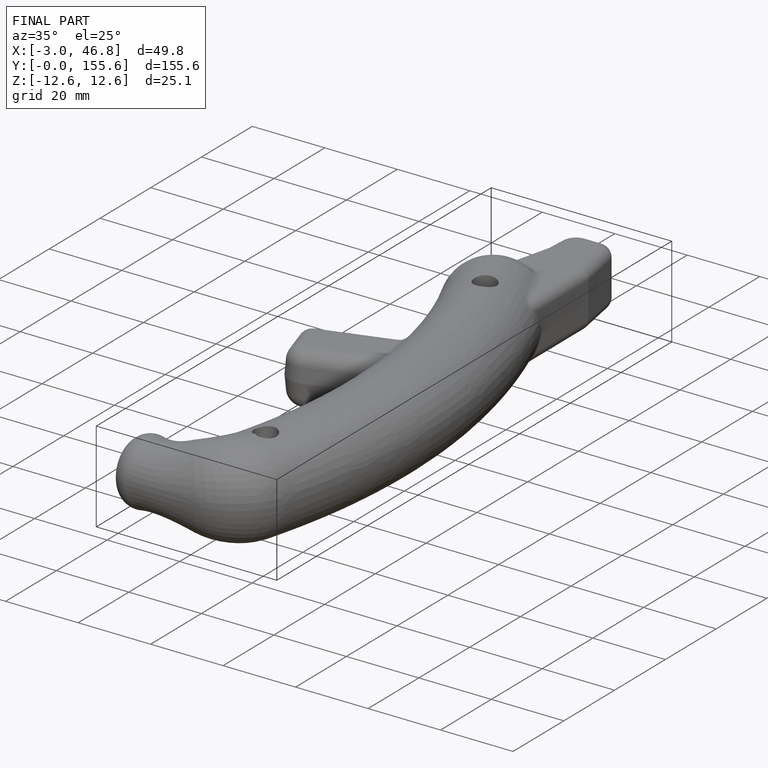
[diagram: finished part — iso view with bounding-box wireframe]
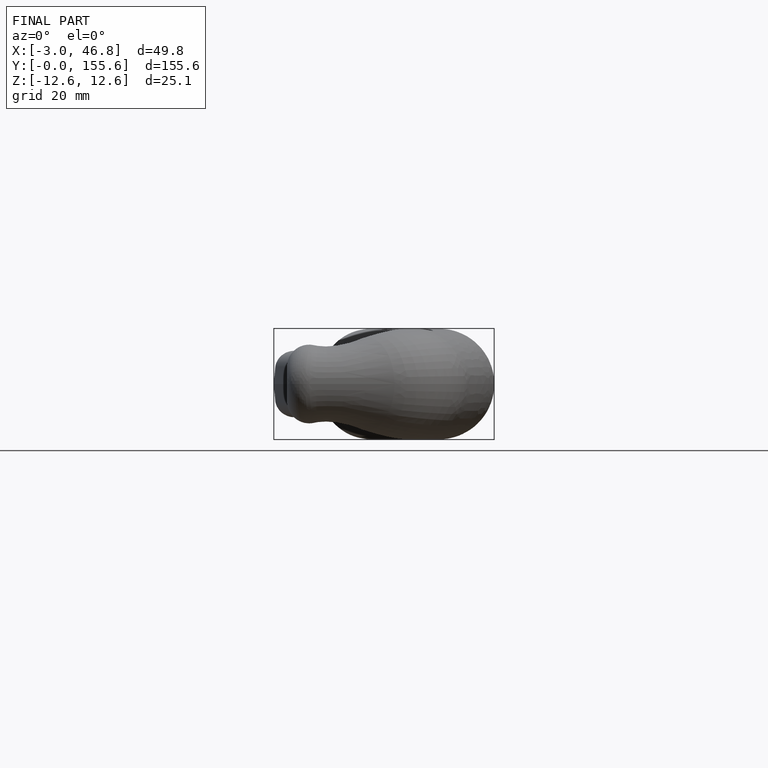
[diagram: finished part — front view with bounding-box wireframe]
